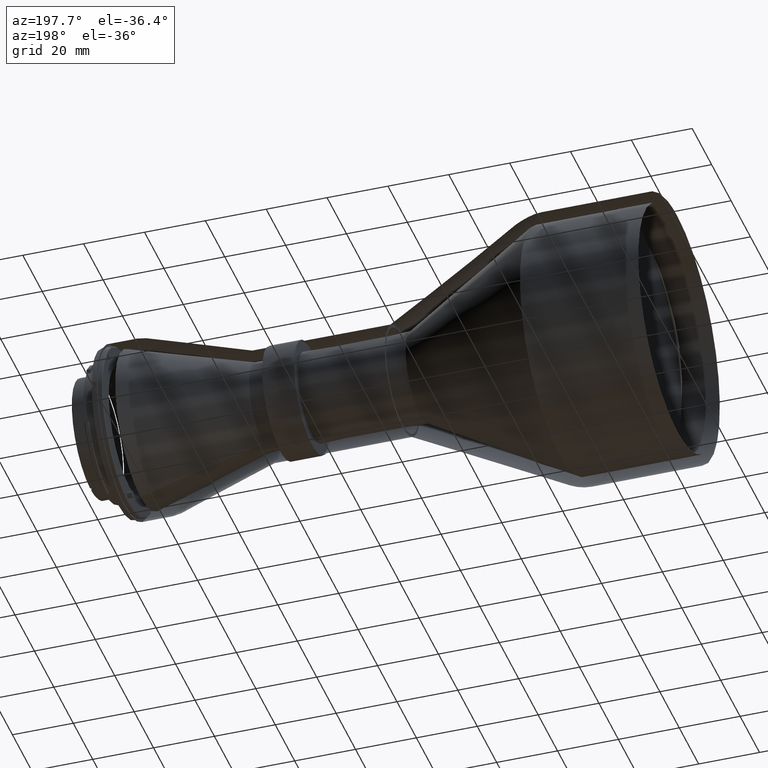
[diagram: clean part render]
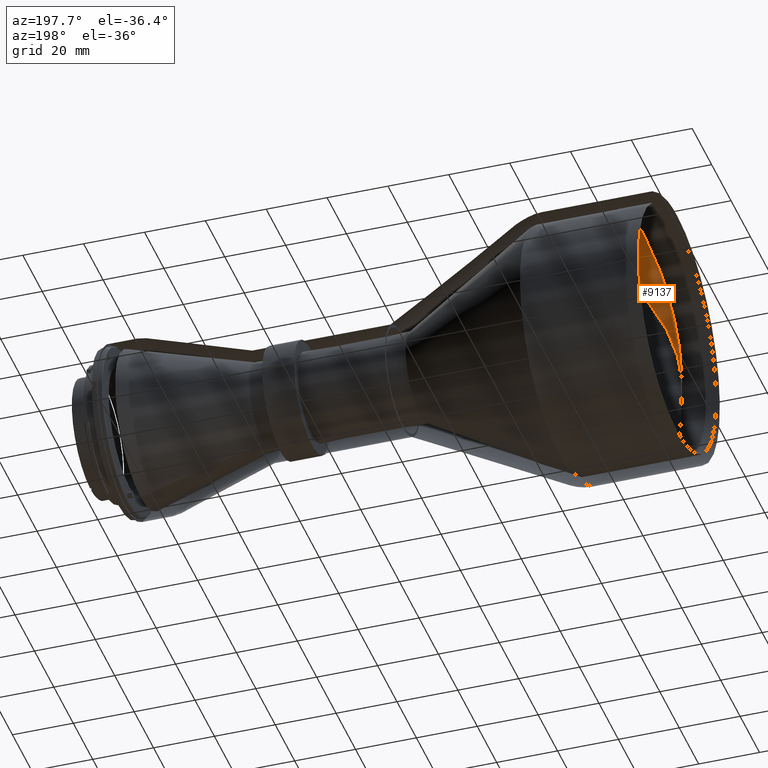
[diagram: same view with one face highlighted and labeled with its STEP entity id]
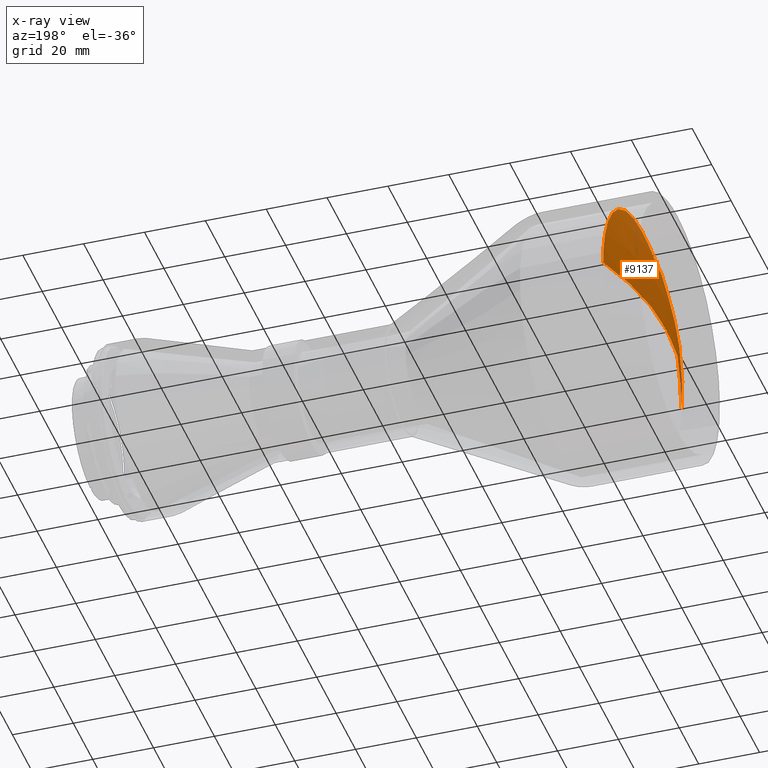
[diagram: x-ray of the same camera — body ghosted, the highlighted face saturated]
A machine part, auxiliary view. The second image highlights one B-rep face of the part: STEP entity #9137.
The next image is the same camera in x-ray: the body ghosted, the highlighted face saturated — about 5% of this face is hidden behind the body in this view.
In plain terms, the highlighted spherical surface has radius 103.562 mm.
Its self-contained STEP definition (entity closure, byte-faithful):
#101 = DIRECTION ( 'NONE',  ( -1.000000000000000000, 0.000000000000000000, -2.054558835495901942E-12 ) ) ;
#198 = AXIS2_PLACEMENT_3D ( 'NONE', #9214, #1344, #5686 ) ;
#200 = CARTESIAN_POINT ( 'NONE',  ( -12.48774575292419975, 38.91426927725704132, -153.6882559369119292 ) ) ;
#365 = EDGE_CURVE ( 'NONE', #7354, #8253, #6089, .T. ) ;
#597 = CARTESIAN_POINT ( 'NONE',  ( -12.48774575290030420, 3.001801264140851347E-15, -123.9114151909433730 ) ) ;
#608 = CARTESIAN_POINT ( 'NONE',  ( -12.48774575292420153, -5.262102636034062364, -124.1705479237531904 ) ) ;
#725 = FACE_OUTER_BOUND ( 'NONE', #6516, .T. ) ;
#799 = CARTESIAN_POINT ( 'NONE',  ( 82.95359704713609972, -1.584066211535169798E-11, -164.1114151907869712 ) ) ;
#851 = CARTESIAN_POINT ( 'NONE',  ( -12.48774575292419620, 26.56523537337619345, -133.8252653569358017 ) ) ;
#1157 = CARTESIAN_POINT ( 'NONE',  ( -12.48774575292419797, 5.262102636034062364, -124.1705479237531762 ) ) ;
#1204 = CARTESIAN_POINT ( 'NONE',  ( -12.48774575292419620, 20.14625710088991895, -129.2245849102476143 ) ) ;
#1302 = CARTESIAN_POINT ( 'NONE',  ( 82.95359704713609972, -1.584066211535169798E-11, -164.1114151907869712 ) ) ;
#1344 = DIRECTION ( 'NONE',  ( 2.054468784391190237E-12, -3.144020888506971909E-25, -1.000000000000000000 ) ) ;
#1357 = CARTESIAN_POINT ( 'NONE',  ( -12.48774575290030420, 3.001801264140851347E-15, -123.9114151909433730 ) ) ;
#1602 = CARTESIAN_POINT ( 'NONE',  ( -12.48774575292419975, 30.28614983409301686, -137.5461798176401373 ) ) ;
#1611 = CARTESIAN_POINT ( 'NONE',  ( -12.48774575285003152, 40.20000000012053931, -164.1114151909830525 ) ) ;
#1694 = EDGE_CURVE ( 'NONE', #8253, #2325, #5131, .T. ) ;
#1974 = CARTESIAN_POINT ( 'NONE',  ( -12.48774575292419620, -40.20000000010863772, -161.4803313435995449 ) ) ;
#2019 = CARTESIAN_POINT ( 'NONE',  ( -12.48774575292420153, -20.14625710088991184, -129.2245849102476996 ) ) ;
#2043 = VERTEX_POINT ( 'NONE', #7044 ) ;
#2121 = AXIS2_PLACEMENT_3D ( 'NONE', #1302, #2801, #6305 ) ;
#2246 = AXIS2_PLACEMENT_3D ( 'NONE', #799, #3680, #101 ) ;
#2310 = CARTESIAN_POINT ( 'NONE',  ( -12.48774575292419620, 31.96332654842360554, -139.5898255570781430 ) ) ;
#2325 = VERTEX_POINT ( 'NONE', #8286 ) ;
#2470 = ORIENTED_EDGE ( 'NONE', *, *, #2502, .T. ) ;
#2502 = EDGE_CURVE ( 'NONE', #2043, #2325, #6779, .T. ) ;
#2724 = CARTESIAN_POINT ( 'NONE',  ( -12.48774575292420153, -26.56523537337617924, -133.8252653569358586 ) ) ;
#2801 = DIRECTION ( 'NONE',  ( -2.054468784391190237E-12, 3.143360148565440255E-25, 1.000000000000000000 ) ) ;
#2813 = CARTESIAN_POINT ( 'NONE',  ( -12.48774575284921973, -40.20000000008589325, -164.1114151909829957 ) ) ;
#3012 = CARTESIAN_POINT ( 'NONE',  ( -12.48774575292420153, 34.88683028080274084, -143.9651580901109753 ) ) ;
#3438 = CARTESIAN_POINT ( 'NONE',  ( -12.48774575292419975, -30.28614983409297423, -137.5461798176401942 ) ) ;
#3468 = CARTESIAN_POINT ( 'NONE',  ( -12.48774575292419797, 24.52158963393253543, -132.1480886426120662 ) ) ;
#3478 = CARTESIAN_POINT ( 'NONE',  ( -12.48774575292420153, -2.631083847383520524, -123.9114151910005148 ) ) ;
#3526 = CARTESIAN_POINT ( 'NONE',  ( -12.48774575292419975, -10.42315925407540611, -125.1971459138259917 ) ) ;
#3680 = DIRECTION ( 'NONE',  ( 2.054468784391190237E-12, 1.224646796003992963E-16, -1.000000000000000000 ) ) ;
#3830 = CARTESIAN_POINT ( 'NONE',  ( -12.48774575292419975, 36.13308500946040880, -146.2967366949867767 ) ) ;
#4136 = CARTESIAN_POINT ( 'NONE',  ( -12.48774575292419620, 12.95306946617087718, -125.9645857864877314 ) ) ;
#4794 = CARTESIAN_POINT ( 'NONE',  ( -12.48774575292419797, 17.81467849600994313, -127.9783301815978263 ) ) ;
#4854 = CARTESIAN_POINT ( 'NONE',  ( -12.48774575292419975, -38.14682940458671823, -151.1583457248190996 ) ) ;
#4897 = CARTESIAN_POINT ( 'NONE',  ( -12.48774575292420153, -12.95306946617087895, -125.9645857864877598 ) ) ;
#4937 = CARTESIAN_POINT ( 'NONE',  ( -12.48774575292419975, -34.88683028080271242, -143.9651580901110037 ) ) ;
#5092 = CARTESIAN_POINT ( 'NONE',  ( -12.48774575292420153, 39.94086726734716564, -158.8493125549498757 ) ) ;
#5131 = CIRCLE ( 'NONE', #2121, 103.5620100010689981 ) ;
#5186 = CARTESIAN_POINT ( 'NONE',  ( -12.48774575292420330, 40.20000000010870878, -161.4803313435995733 ) ) ;
#5463 = EDGE_CURVE ( 'NONE', #2043, #7354, #8017, .T. ) ;
#5686 = DIRECTION ( 'NONE',  ( 1.530332761633393894E-13, 1.000000000000000000, 0.000000000000000000 ) ) ;
#5890 = ORIENTED_EDGE ( 'NONE', *, *, #1694, .F. ) ;
#5986 = CARTESIAN_POINT ( 'NONE',  ( -12.48774575292419797, 38.14682940458677507, -151.1583457248190712 ) ) ;
#6089 = B_SPLINE_CURVE_WITH_KNOTS ( 'NONE', 3,
 ( #597, #7623, #1157, #9078, #4136, #4794, #1204, #3468, #851, #1602, #2310, #3012, #3830, #5986, #200, #5092, #5186, #8859 ),
 .UNSPECIFIED., .F., .F.,
 ( 4, 2, 2, 2, 2, 2, 2, 2, 4 ),
 ( 0.3333333333328583059, 0.3749999999994654276, 0.4166666666660726048, 0.4583333333326799486, 0.4999999999992872923, 0.5416666666658946916, 0.5833333333325020353, 0.6249999999991093791, 0.6666666666657167228 ),
 .UNSPECIFIED. ) ;
#6278 = CARTESIAN_POINT ( 'NONE',  ( -12.48774575292420153, -39.94086726734710879, -158.8493125549499041 ) ) ;
#6305 = DIRECTION ( 'NONE',  ( 1.000000000000000000, 0.000000000000000000, 2.054558835495901942E-12 ) ) ;
#6516 = EDGE_LOOP ( 'NONE', ( #6903, #2470, #5890, #7233 ) ) ;
#6779 = CIRCLE ( 'NONE', #2246, 103.5620100010689981 ) ;
#6903 = ORIENTED_EDGE ( 'NONE', *, *, #5463, .F. ) ;
#7044 = CARTESIAN_POINT ( 'NONE',  ( -12.48774575284921973, -40.20000000008589325, -164.1114151909829957 ) ) ;
#7054 = SPHERICAL_SURFACE ( 'NONE', #198, 103.5620100010689981 ) ;
#7233 = ORIENTED_EDGE ( 'NONE', *, *, #365, .F. ) ;
#7354 = VERTEX_POINT ( 'NONE', #8177 ) ;
#7623 = CARTESIAN_POINT ( 'NONE',  ( -12.48774575292419975, 2.631083847383521857, -123.9114151910004864 ) ) ;
#7729 = CARTESIAN_POINT ( 'NONE',  ( -12.48774575292420153, -36.13308500946035196, -146.2967366949868051 ) ) ;
#7812 = CARTESIAN_POINT ( 'NONE',  ( -12.48774575292419975, -17.81467849600993247, -127.9783301815978263 ) ) ;
#7858 = CARTESIAN_POINT ( 'NONE',  ( -12.48774575292420153, -31.96332654842358423, -139.5898255570782567 ) ) ;
#8017 = B_SPLINE_CURVE_WITH_KNOTS ( 'NONE', 3,
 ( #2813, #1974, #6278, #9179, #4854, #7729, #4937, #7858, #3438, #2724, #8478, #2019, #7812, #4897, #3526, #608, #3478, #1357 ),
 .UNSPECIFIED., .F., .F.,
 ( 4, 2, 2, 2, 2, 2, 2, 2, 4 ),
 ( 0.000000000000000000, 0.04166666666660728824, 0.08333333333321457648, 0.1249999999998218647, 0.1666666666664291530, 0.2083333333330364412, 0.2499999999996437294, 0.2916666666662510177, 0.3333333333328583059 ),
 .UNSPECIFIED. ) ;
#8177 = CARTESIAN_POINT ( 'NONE',  ( -12.48774575290030420, 3.001801264140851347E-15, -123.9114151909433730 ) ) ;
#8253 = VERTEX_POINT ( 'NONE', #1611 ) ;
#8286 = CARTESIAN_POINT ( 'NONE',  ( -20.60841295393289840, 1.268268839586037163E-14, -164.1114151909997645 ) ) ;
#8478 = CARTESIAN_POINT ( 'NONE',  ( -12.48774575292419975, -24.52158963393252122, -132.1480886426120946 ) ) ;
#8859 = CARTESIAN_POINT ( 'NONE',  ( -12.48774575285003152, 40.20000000012053931, -164.1114151909830525 ) ) ;
#9078 = CARTESIAN_POINT ( 'NONE',  ( -12.48774575292419797, 10.42315925407540433, -125.1971459138259632 ) ) ;
#9137 = ADVANCED_FACE ( 'NONE', ( #725 ), #7054, .F. ) ;
#9179 = CARTESIAN_POINT ( 'NONE',  ( -12.48774575292419797, -38.91426927725698448, -153.6882559369119576 ) ) ;
#9214 = CARTESIAN_POINT ( 'NONE',  ( 82.95359704713609972, -1.584066211535169798E-11, -164.1114151907869712 ) ) ;